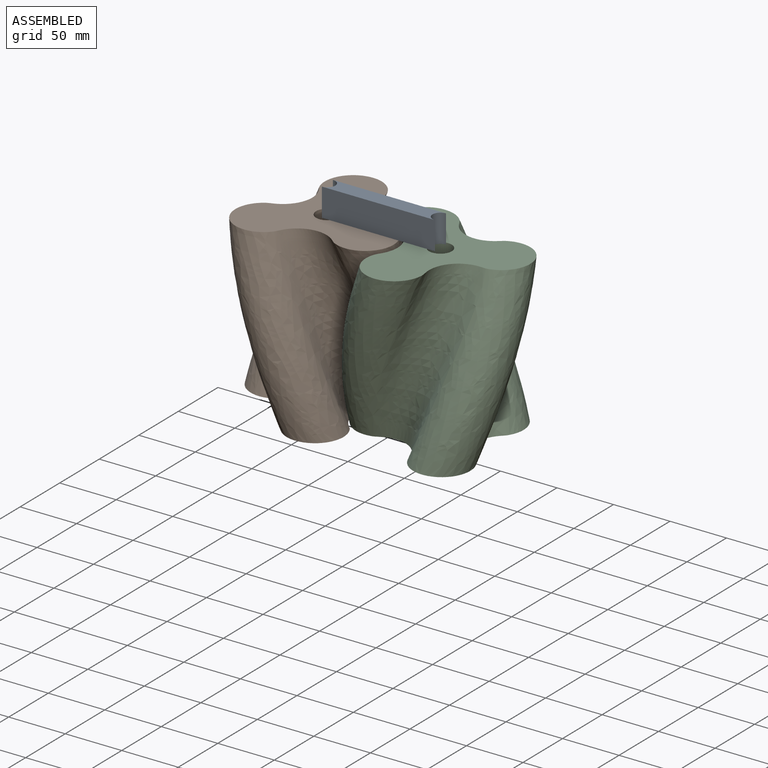
[diagram: assembled view]
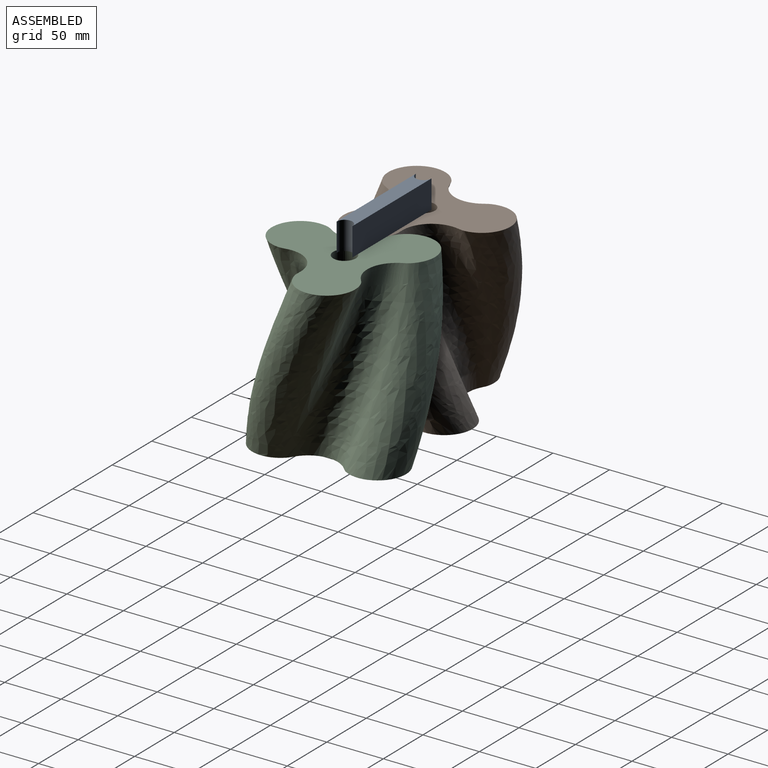
[diagram: assembled view, second angle]
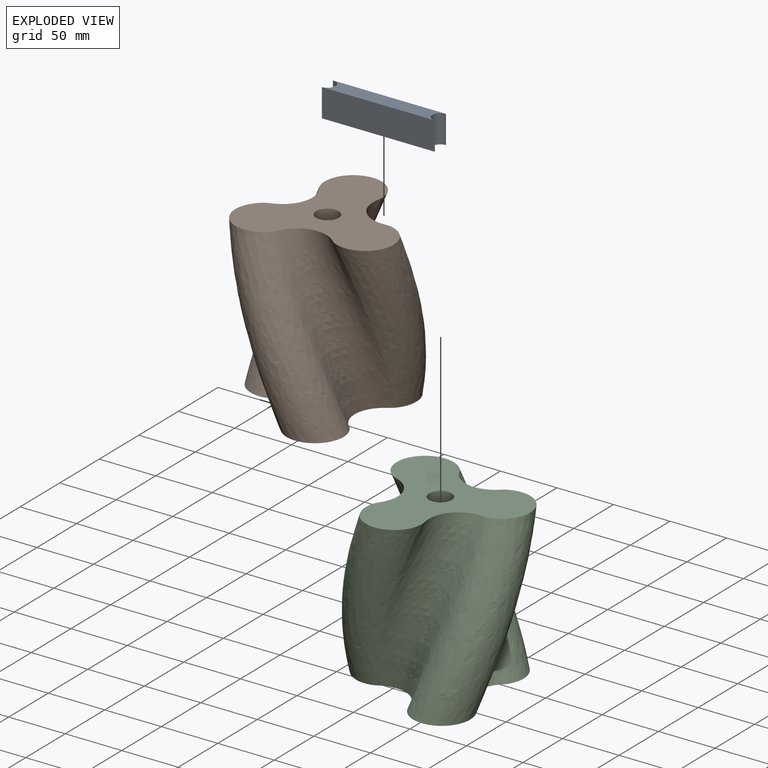
[diagram: exploded view]
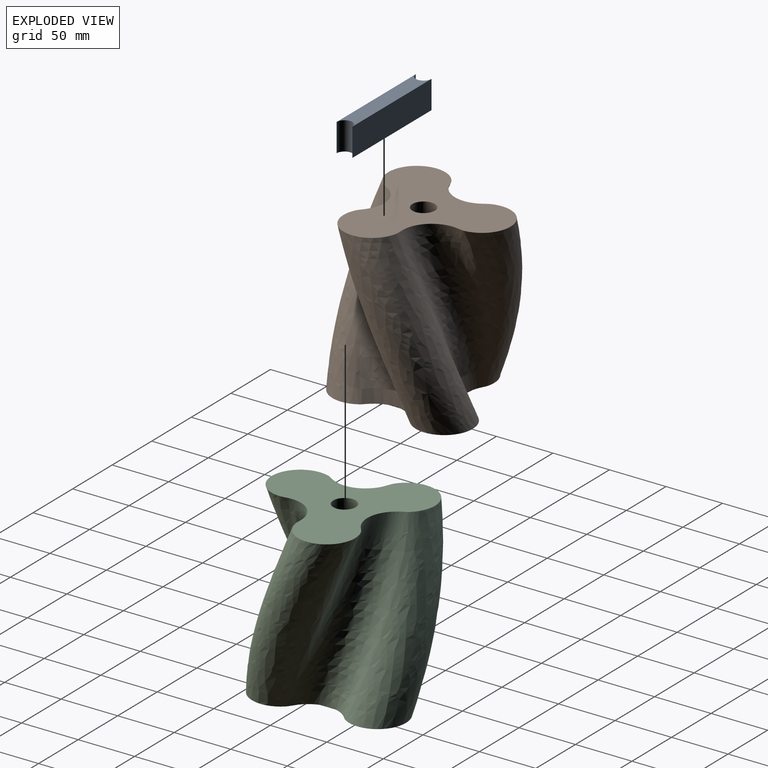
[diagram: exploded view, second angle]
ASSEMBLY  parts=3 mates=2
PART A: 6 faces, bbox 100x25x14 mm
  f0: plane 100x25mm, normal (0,0,1), area 2500mm2, adj f1,f3,f4,f5
  f1: cylinder r=6.98mm len=25mm, axis (0,1,0), area 548.4mm2, adj f0,f2,f4,f5
  f2: plane 100x25mm, normal (0,0,-1), area 2500mm2, adj f1,f3,f4,f5
  f3: cylinder r=6.98mm len=25mm, axis (0,1,0), area 548.4mm2, adj f0,f2,f4,f5
  f4: plane 100x13.97mm, normal (0,-1,0), area 1243.3mm2, adj f0,f1,f2,f3
  f5: plane 100x13.97mm, normal (0,1,0), area 1243.3mm2, adj f0,f1,f2,f3
PART B: 17 faces, bbox 147.8x147.7x158.6 mm
  f0: plane 131.6x120.85mm, normal (0,0,-1), area 8115.4mm2, adj f2,f3,f4,f5,f6,f7,f8,f9
  f1: plane 129.66x127.99mm, normal (0,0,1), area 8114.9mm2, adj f2,f3,f5,f6,f7,f8,f10,f11
  f2: bspline ~157.61x104.5mm, area 6641.2mm2, adj f0,f1,f3,f15
  f3: bspline ~157.61x90.16mm, area 6641.6mm2, adj f0,f1,f2,f4
  f4: bspline ~150x47.73mm, area 0.1mm2, adj f0,f3,f5
  f5: bspline ~157.61x91.89mm, area 9373.1mm2, adj f0,f1,f4,f6
  f6: bspline ~157.61x57.39mm, area 0.6mm2, adj f0,f1,f5,f7
  f7: bspline ~157.61x85.59mm, area 6641.2mm2, adj f0,f1,f6,f8
  f8: bspline ~157.61x96.43mm, area 6641.6mm2, adj f0,f1,f7,f9
  f9: bspline ~150x58.89mm, area 0.1mm2, adj f0,f8,f10
  f10: bspline ~157.61x86.18mm, area 9373.1mm2, adj f0,f1,f9,f11
  f11: bspline ~157.61x48.59mm, area 0.6mm2, adj f0,f1,f10,f12
  f12: bspline ~150x92.18mm, area 6641.2mm2, adj f0,f1,f11,f13
  f13: bspline ~157.61x104.77mm, area 6641.6mm2, adj f0,f1,f12,f14
  f14: bspline ~157.61x75mm, area 9373.2mm2, adj f0,f1,f13,f15
  f15: bspline ~157.61x61.19mm, area 0.6mm2, adj f0,f1,f2,f14
  f16: cylinder r=10mm len=150mm, axis (0,0,1), area 9424.8mm2, adj f0,f1
PART C: 17 faces, bbox 147.8x147.7x158.6 mm
  f0: plane 131.6x120.85mm, normal (0,0,-1), area 8115.4mm2, adj f2,f3,f4,f5,f6,f7,f8,f9
  f1: plane 129.66x127.98mm, normal (0,0,1), area 8114.8mm2, adj f2,f3,f5,f6,f7,f8,f10,f11
  f2: bspline ~157.61x104.77mm, area 6641.2mm2, adj f0,f1,f3,f15
  f3: bspline ~157.61x98.68mm, area 6641.6mm2, adj f0,f1,f2,f4
  f4: bspline ~150x47.73mm, area 0.1mm2, adj f0,f3,f5
  f5: bspline ~157.61x86.18mm, area 9373.1mm2, adj f0,f1,f4,f6
  f6: bspline ~157.61x61.19mm, area 0.6mm2, adj f0,f1,f5,f7
  f7: bspline ~157.61x96.42mm, area 6641.2mm2, adj f0,f1,f6,f8
  f8: bspline ~157.61x85.59mm, area 6641.6mm2, adj f0,f1,f7,f9
  f9: bspline ~150x54.27mm, area 0.1mm2, adj f0,f8,f10
  f10: bspline ~157.61x91.89mm, area 9373.1mm2, adj f0,f1,f9,f11
  f11: bspline ~157.61x48.59mm, area 0.6mm2, adj f0,f1,f10,f12
  f12: bspline ~157.61x90.16mm, area 6641.2mm2, adj f0,f1,f11,f13
  f13: bspline ~157.61x104.5mm, area 6641.6mm2, adj f0,f1,f12,f14
  f14: bspline ~157.61x75mm, area 9373.2mm2, adj f0,f1,f13,f15
  f15: bspline ~157.61x57.39mm, area 0.6mm2, adj f0,f1,f2,f14
  f16: cylinder r=10mm len=150mm, axis (0,0,1), area 9424.8mm2, adj f0,f1
PLACE A rot(axis=(1,0,0),90deg) t=(-19.79,73.81,134.87)mm fixed
PLACE B rot(axis=(0,0,-1),126.2deg) t=(-19.79,66.82,-40.13)mm
PLACE C rot(axis=(0,0,1),126.2deg) t=(80.21,66.82,-40.13)mm
MATE revolute B.f16 <-> A.f1  axis (0,0,1) through (-19.79,66.82,109.87)mm
MATE revolute C.f16 <-> A.f3  axis (0,0,1) through (80.21,66.82,109.87)mm
